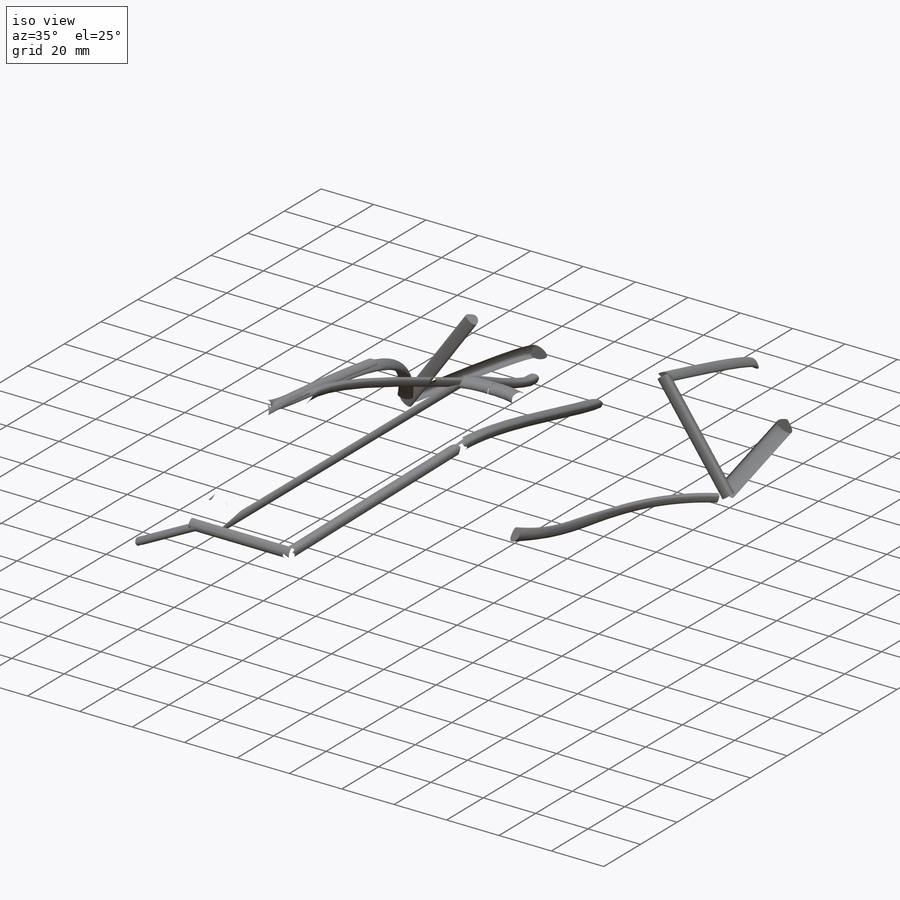
[diagram: iso view]
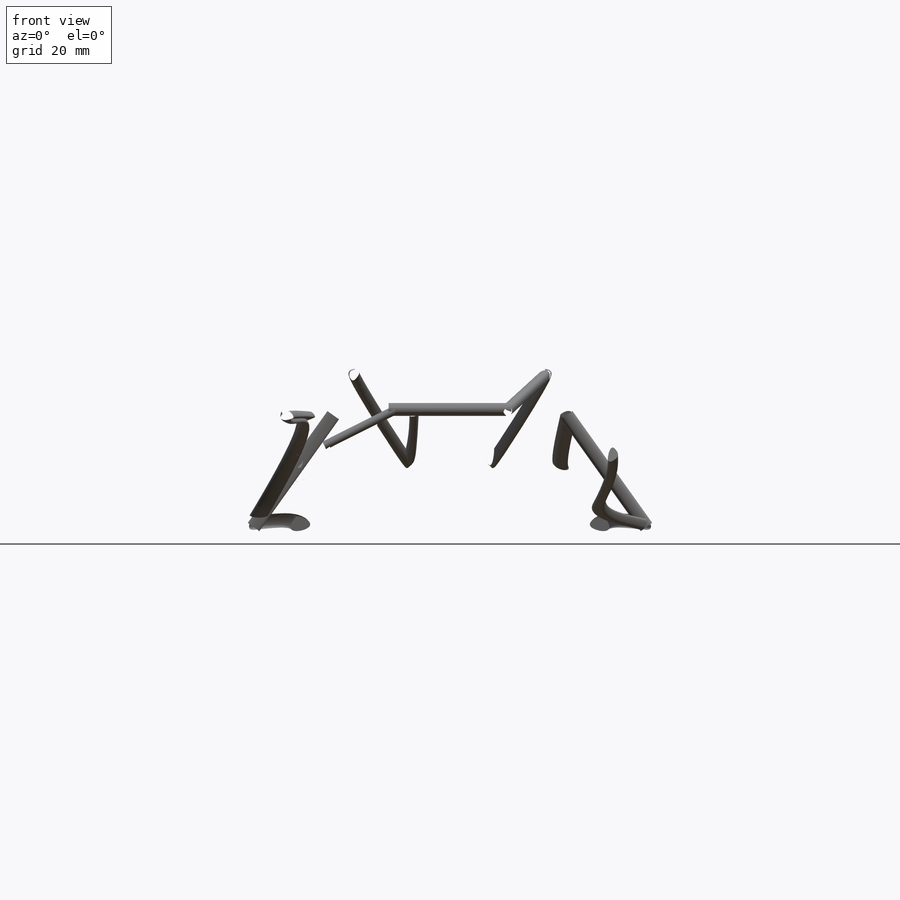
[diagram: front view]
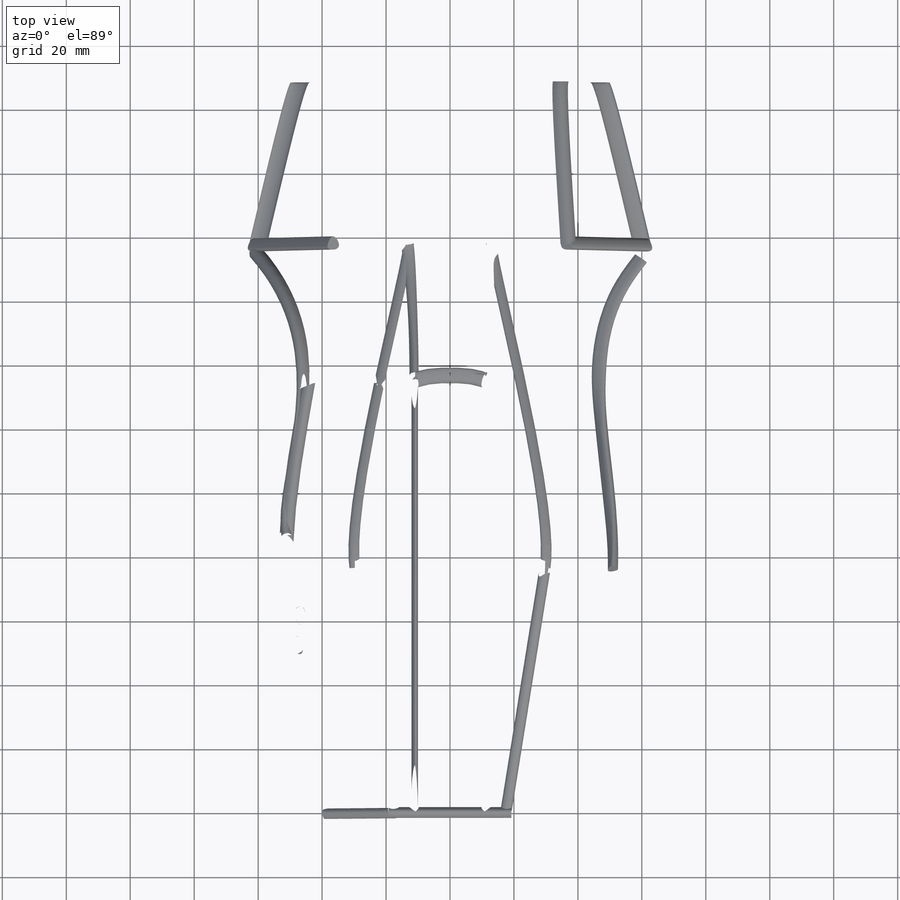
[diagram: top view]
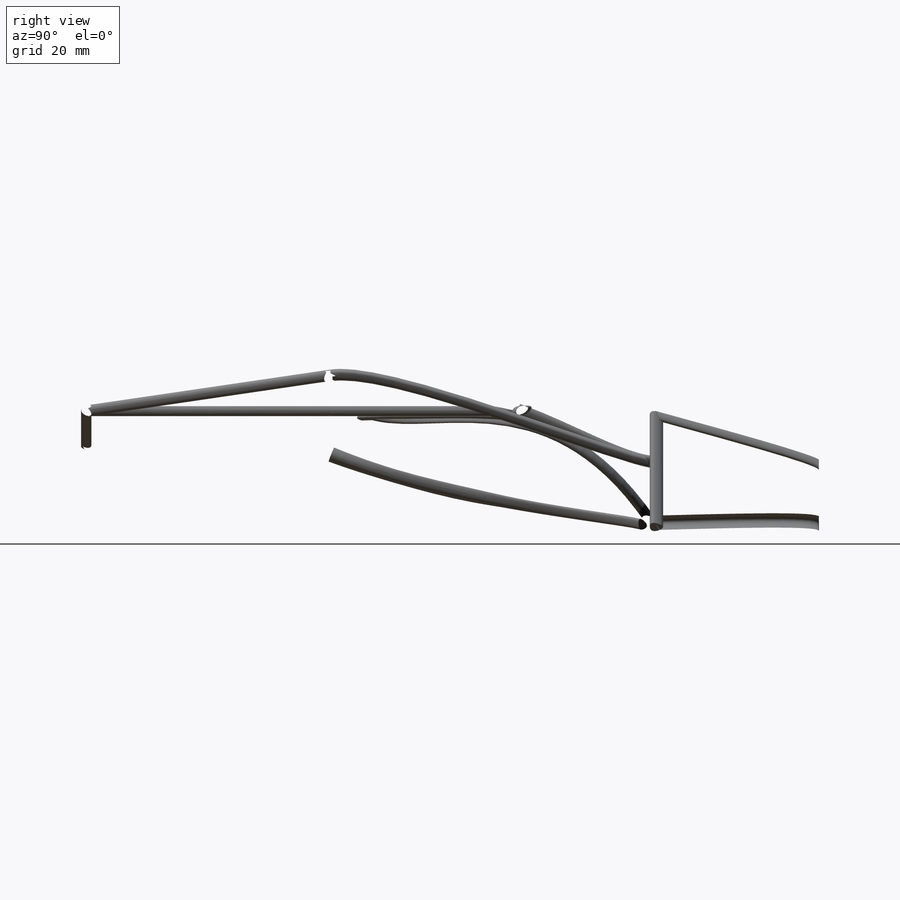
[diagram: right view]
SOLIDWORKS PART (.sldprt)
format: sldprt  version: not decoded by parser v0  size: 8,924,672 bytes
history: native  units: mm
features: sketch x176, plane x59, sweep x31, mirror x23, extrude x12, cut_extrude x4, material x1, delete_body x1 (+13 scaffold rows collapsed)
feature tree (320):
  scaffold x13  (default folders/planes/origin — collapsed)
  material  "Material <not specified>"
  sketch  "Sketch1"  dims[c1.D1=44.45mm c1.D2=25.4mm c1.D3=19.05mm c1.D4=40.64mm c2.D1=2.54mm]
  plane  "Plane1"  Offset=76.2mm
  sketch  "Sketch2"
  plane  "Plane2"  Offset=152.4mm
  sketch  "Sketch3"  dims[D1=25.4mm D2=12.7mm]
  plane  "Plane3"  Offset=50.8mm
  sketch  "Sketch4"
  sketch  "Sketch5"
  cut_extrude  "Cut-Extrude1"  Depth=72.898mm
  mirror  "Mirror1"
  sketch  "Sketch6"  dims[c1.D1=21.59mm c1.D2=25.4mm c2.D1=21.336mm c2.D2=21.59mm c2.D3=10.795mm]
  cut_extrude  "Cut-Extrude2"  Depth=300.99mm
  sketch  "Sketch7"
  cut_extrude  "Cut-Extrude3"  Depth=113.284mm
  sketch  "3DSketch11"
  sketch  "3DSketch12"
  sketch  "3DSketch16"
  sketch  "3DSketch17"
  sketch  "3DSketch21"
  sketch  "3DSketch22"
  sketch  "3DSketch26"
  sketch  "3DSketch32"
  sketch  "3DSketch37"
  sketch  "3DSketch41"
  sketch  "3DSketch42"
  sketch  "3DSketch46"
  sketch  "3DSketch47"
  sketch  "3DSketch56"
  sketch  "3DSketch61"
  sketch  "3DSketch66"
  sketch  "3DSketch67"
  sketch  "3DSketch71"
  sketch  "3DSketch72"
  sketch  "3DSketch76"
  sketch  "3DSketch81"
  sketch  "3DSketch82"
  sketch  "3DSketch86"
  sketch  "3DSketch87"
  sketch  "3DSketch91"
  sketch  "3DSketch92"
  sketch  "3DSketch96"
  sketch  "3DSketch97"
  sketch  "3DSketch106"
  sketch  "3DSketch112"
  sketch  "3DSketch114"
  sketch  "3DSketch116"
  sketch  "3DSketch117"
  sketch  "3DSketch122"
  sketch  "3DSketch126"
  sketch  "3DSketch127"
  sketch  "3DSketch132"
  sketch  "3DSketch134"
  sketch  "3DSketch136"
  sketch  "3DSketch141"
  sketch  "3DSketch146"
  sketch  "3DSketch149"
  sketch  "3DSketch151"
  sketch  "3DSketch153"
  sketch  "3DSketch154"
  sketch  "3DSketch156"
  sketch  "3DSketch161"
  sketch  "3DSketch162"
  sketch  "3DSketch166"
  sketch  "3DSketch167"
  sketch  "3DSketch172"
  sketch  "3DSketch176"
  sketch  "3DSketch181"
  sketch  "3DSketch187"
  sketch  "3DSketch191"
  sketch  "3DSketch196"
  sketch  "3DSketch197"
  sketch  "3DSketch201"
  sketch  "3DSketch202"
  sketch  "3DSketch206"
  sketch  "3DSketch207"
  sketch  "3DSketch211"
  sketch  "3DSketch212"
  sketch  "3DSketch216"
  sketch  "3DSketch217"
  sketch  "3DSketch221"
  sketch  "3DSketch232"
  sketch  "3DSketch236"
  sketch  "3DSketch241"
  sketch  "3DSketch247"
  sketch  "3DSketch252"
  sketch  "3DSketch261"
  sketch  "3DSketch262"
  sketch  "3DSketch267"
  sketch  "3DSketch271"
  sketch  "3DSketch277"
  sketch  "3DSketch281"
  sketch  "Sketch8"
  plane  "Plane4"
  sketch  "3DSketch287"
  sketch  "3DSketch291"
  sketch  "3DSketch292"
  sketch  "3DSketch296"
  sketch  "3DSketch301"
  sketch  "3DSketch307"
  sketch  "3DSketch309"
  sketch  "3DSketch313"
  sketch  "3DSketch314"
  sketch  "3DSketch316"
  sketch  "3DSketch318"
  sketch  "3DSketch323"
  sketch  "3DSketch324"
  sketch  "3DSketch328"
  sketch  "3DSketch330"
  sketch  "3DSketch331"
  sketch  "Sketch10"
  sketch  "3DSketch332"
  sketch  "3DSketch338"
  plane  "Plane5"
  plane  "Plane6"
  sketch  "Sketch14"
  sketch  "3DSketch344"
  sketch  "3DSketch353"
  sketch  "Sketch18"
  sketch  "3DSketch354"
  sketch  "3DSketch359"
  sketch  "3DSketch363"
  sketch  "3DSketch365"
  plane  "Plane7"  Offset=0mm
  plane  "Plane8"
  sketch  "Sketch19"
  plane  "Plane10"
  sketch  "Sketch21"
  plane  "Plane11"
  sketch  "Sketch22"
  sketch  "Sketch23"
  plane  "Plane12"
  sketch  "Sketch24"
  plane  "Plane13"
  delete_body  "Body-Delete2"
  plane  "Plane15"
  sketch  "Sketch27"
  sweep  "Sweep1"
  plane  "Plane16"
  sketch  "Sketch28"
  sweep  "Sweep2"
  mirror  "Mirror6"
  mirror  "Mirror7"
  plane  "Plane17"
  sketch  "Sketch29"
  sweep  "Sweep3"
  mirror  "Mirror8"
  plane  "Plane18"
  plane  "Plane19"
  plane  "Plane20"
  sketch  "Sketch32"
  sweep  "Sweep6"
  mirror  "Mirror9"
  plane  "Plane21"
  sketch  "Sketch33"
  sweep  "Sweep7"
  sketch  "Sketch34"
  plane  "Plane22"
  sketch  "Sketch35"
  plane  "Plane23"
  plane  "Plane24"
  sketch  "Sketch37"
  sketch  "Sketch38"
  extrude  "Boss-Extrude1"  Depth=35.814mm
  mirror  "Mirror10"
  plane  "Plane25"
  plane  "Plane26"
  sketch  "Sketch40"
  sweep  "Sweep12"
  sketch  "3DSketch366"
  plane  "Plane27"
  sketch  "Sketch41"
  plane  "Plane28"
  sketch  "Sketch42"
  sketch  "Sketch44"
  sweep  "Sweep16"
  plane  "Plane30"
  sketch  "Sketch45"
  sweep  "Sweep20"
  plane  "Plane31"
  plane  "Plane32"
  sketch  "Sketch47"
  extrude  "Boss-Extrude4"  Depth=42.926mm
  plane  "Plane33"
  sketch  "Sketch48"
  sweep  "Sweep21"
  mirror  "Mirror11"
  mirror  "Mirror12"
  plane  "Plane34"
  sketch  "Sketch49"
  sweep  "Sweep23"
  mirror  "Mirror13"
  plane  "Plane35"
  sketch  "Sketch50"
  extrude  "Boss-Extrude5"  Depth=125.73mm
  plane  "Plane36"
  sketch  "Sketch51"
  sweep  "Sweep27"
  plane  "Plane37"
  sketch  "Sketch52"
  sweep  "Sweep28"
  sketch  "Sketch53"
  sweep  "Sweep29"
  sketch  "Sketch54"
  sweep  "Sweep30"
  sketch  "Sketch55"
  sweep  "Sweep31"
  mirror  "Mirror14"
  mirror  "Mirror15"
  mirror  "Mirror16"
  mirror  "Mirror17"
  sketch  "Sketch56"
  extrude  "Boss-Extrude6"  Depth=11.938mm
  plane  "Plane38"
  sketch  "Sketch57"
  sweep  "Sweep35"
  plane  "Plane39"
  sketch  "Sketch58"
  sweep  "Sweep36"
  sketch  "Sketch59"
  sketch  "Sketch60"
  extrude  "Boss-Extrude7"  Depth=2.286mm
  mirror  "Mirror18"
  plane  "Plane40"
  sketch  "Sketch62"
  sweep  "Sweep37"
  mirror  "Mirror19"
  plane  "Plane41"
  sketch  "Sketch63"
  sweep  "Sweep38"
  mirror  "Mirror20"
  plane  "Plane42"
  sketch  "Sketch64"
  extrude  "Boss-Extrude9"  Depth=29.718mm
  plane  "Plane43"
  sketch  "Sketch65"
  sweep  "Sweep39"
  sketch  "Sketch66"
  sweep  "Sweep40"
  sketch  "Sketch67"
  sweep  "Sweep41"
  plane  "Plane44"
  sketch  "Sketch68"
  sweep  "Sweep42"
  plane  "Plane45"
  sketch  "Sketch69"
  sweep  "Sweep43"
  mirror  "Mirror21"
  plane  "Plane46"
  sketch  "Sketch70"
  sweep  "Sweep44"
  mirror  "Mirror22"
  plane  "Plane47"
  sketch  "Sketch71"
  plane  "Plane48"
  sketch  "Sketch72"
  plane  "Plane51"
  sketch  "Sketch75"
  sweep  "Sweep47"
  mirror  "Mirror23"
  sketch  "Sketch76"
  extrude  "Boss-Extrude11"  Depth=16.764mm
  mirror  "Mirror24"
  sketch  "Sketch78"
  plane  "Plane53"
  sketch  "Sketch79"
  extrude  "Boss-Extrude13"  Depth=93.472mm
  plane  "Plane54"
  sketch  "Sketch80"
  sweep  "Sweep50"
  mirror  "Mirror25"
  plane  "Plane55"
  sketch  "Sketch81"  dims[D1=2.54mm]
  extrude  "Boss-Extrude16"  Depth=94.742mm
  sketch  "Sketch82"
  plane  "Plane56"  Offset=0mm
  sketch  "Sketch83"
  mirror  "Mirror26"
  plane  "Plane57"
  sketch  "Sketch84"
  sweep  "Sweep52"
  plane  "Plane58"
  sketch  "Sketch85"  dims[D1=3.81mm D2=3.81mm]
  sweep  "Sweep55"
  plane  "Plane59"  Offset=11.1mm
  sketch  "Sketch87"
  cut_extrude  "Cut-Extrude4"  Depth=36.83mm
  sketch  "Sketch88"
  extrude  "Boss-Extrude18"  Depth=18.796mm
  plane  "Plane60"
  sketch  "Sketch89"  dims[D1=2.032mm D2=2.032mm]
  plane  "Plane61"
  sketch  "Sketch90"  dims[D1=2.54mm D2=2.54mm]
  plane  "Plane62"
  sketch  "Sketch91"
  sweep  "Sweep59"
  plane  "Plane63"
  sketch  "Sketch92"
  sketch  "Sketch93"
  sweep  "Sweep61"
  plane  "Plane64"
  sketch  "Sketch94"
  extrude  "Boss-Extrude20"  Depth=81.026mm
  plane  "Plane65"
  sketch  "Sketch95"
  extrude  "Boss-Extrude22"  Depth=74.422mm
  mirror  "Mirror27"
decode coverage: 23 of 247 modeling features carry decoded parameters
summary: profile_refs inferred from adjacent sketches, not decoded
note: suppression state not decoded; provenance and decode notes live in map.json
